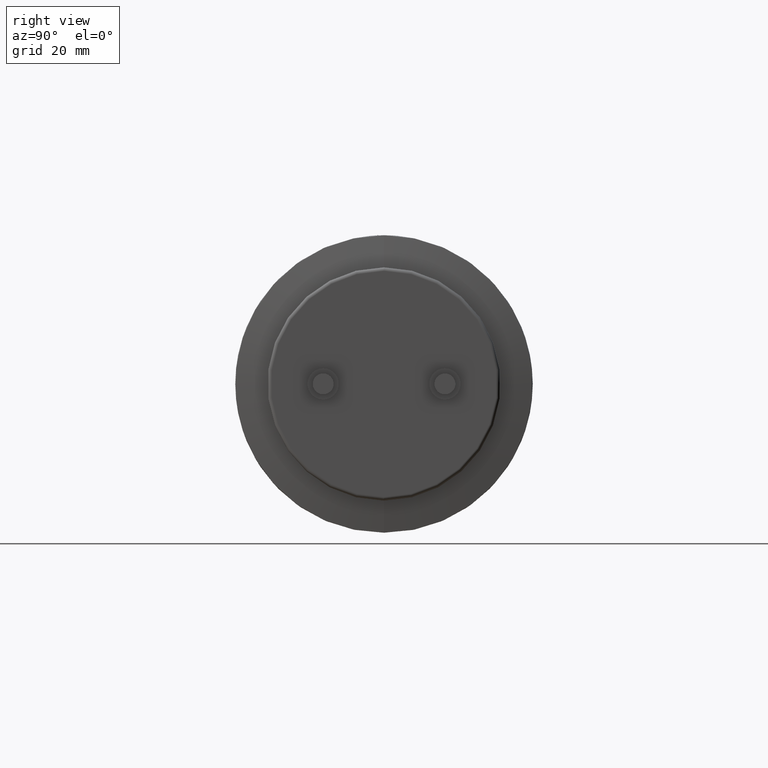
[diagram: clean part render]
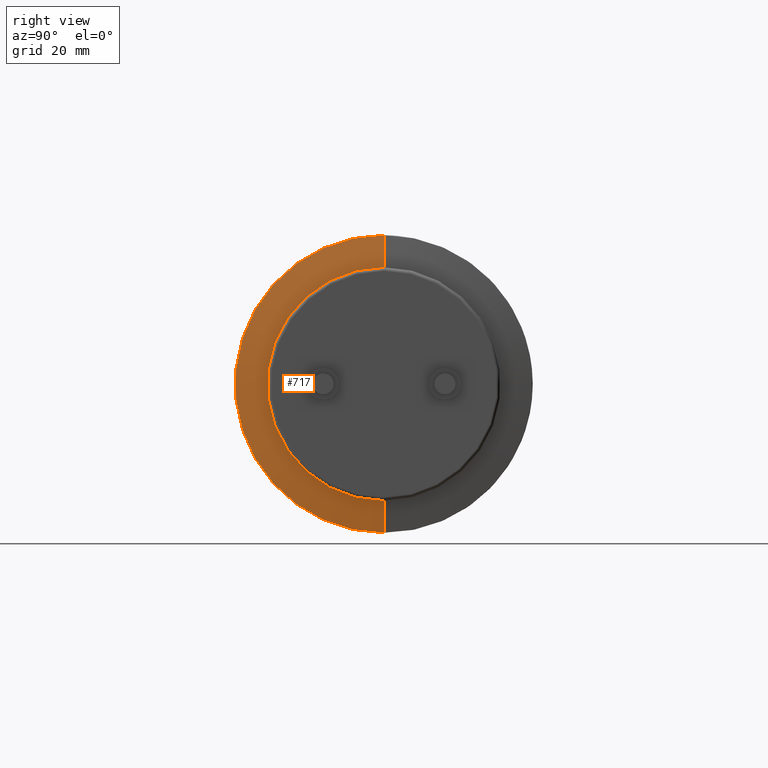
[diagram: same view with one face highlighted and labeled with its STEP entity id]
A machine part, right view. The second image highlights one B-rep face of the part: STEP entity #717.
In plain terms, the highlighted conical surface has half-angle 81.707 deg.
Its self-contained STEP definition (entity closure, byte-faithful):
#113 = EDGE_CURVE ( 'NONE', #2203, #1267, #3289, .T. ) ;
#343 = AXIS2_PLACEMENT_3D ( 'NONE', #2316, #1421, #3254 ) ;
#448 = CARTESIAN_POINT ( 'NONE',  ( 138.6560000000000100, 5.235365066354935500E-015, -42.75000000000000000 ) ) ;
#535 = CARTESIAN_POINT ( 'NONE',  ( 138.6560000000000100, 0.0000000000000000000, 0.0000000000000000000 ) ) ;
#551 = ORIENTED_EDGE ( 'NONE', *, *, #749, .F. ) ;
#696 = CARTESIAN_POINT ( 'NONE',  ( 138.6560000000000100, 5.235365066354935500E-015, -42.75000000000000000 ) ) ;
#702 = DIRECTION ( 'NONE',  ( -0.1442275919508407000, 0.0000000000000000000, 0.9895445425649427300 ) ) ;
#717 = ADVANCED_FACE ( 'NONE', ( #2379 ), #2175, .T. ) ;
#749 = EDGE_CURVE ( 'NONE', #2737, #1070, #3091, .T. ) ;
#879 = EDGE_CURVE ( 'NONE', #1267, #1070, #1955, .T. ) ;
#1070 = VERTEX_POINT ( 'NONE', #696 ) ;
#1077 = CARTESIAN_POINT ( 'NONE',  ( 140.0000000000000000, 0.0000000000000000000, 33.52882499999999800 ) ) ;
#1267 = VERTEX_POINT ( 'NONE', #2650 ) ;
#1421 = DIRECTION ( 'NONE',  ( 1.000000000000000000, -0.0000000000000000000, -0.0000000000000000000 ) ) ;
#1451 = AXIS2_PLACEMENT_3D ( 'NONE', #3342, #2376, #3670 ) ;
#1763 = ORIENTED_EDGE ( 'NONE', *, *, #113, .T. ) ;
#1800 = DIRECTION ( 'NONE',  ( 0.0000000000000000000, 0.0000000000000000000, 1.000000000000000000 ) ) ;
#1955 = CIRCLE ( 'NONE', #1451, 42.75000000000000000 ) ;
#2137 = EDGE_CURVE ( 'NONE', #2203, #2737, #3756, .T. ) ;
#2175 = CONICAL_SURFACE ( 'NONE', #2618, 42.75000000000000000, 1.426063968034981100 ) ;
#2203 = VERTEX_POINT ( 'NONE', #1077 ) ;
#2281 = VECTOR ( 'NONE', #3565, 1000.000000000000000 ) ;
#2284 = VECTOR ( 'NONE', #702, 1000.000000000000000 ) ;
#2316 = CARTESIAN_POINT ( 'NONE',  ( 140.0000000000000000, 0.0000000000000000000, 0.0000000000000000000 ) ) ;
#2376 = DIRECTION ( 'NONE',  ( 1.000000000000000000, -0.0000000000000000000, -0.0000000000000000000 ) ) ;
#2379 = FACE_OUTER_BOUND ( 'NONE', #2926, .T. ) ;
#2538 = CARTESIAN_POINT ( 'NONE',  ( 138.6560000000000100, 0.0000000000000000000, 42.75000000000000000 ) ) ;
#2618 = AXIS2_PLACEMENT_3D ( 'NONE', #535, #3328, #1800 ) ;
#2650 = CARTESIAN_POINT ( 'NONE',  ( 138.6560000000000100, 0.0000000000000000000, 42.75000000000000000 ) ) ;
#2737 = VERTEX_POINT ( 'NONE', #2924 ) ;
#2924 = CARTESIAN_POINT ( 'NONE',  ( 140.0000000000000000, 4.670730943948555600E-015, -33.52882499999999800 ) ) ;
#2926 = EDGE_LOOP ( 'NONE', ( #551, #3627, #1763, #3126 ) ) ;
#3091 = LINE ( 'NONE', #448, #2281 ) ;
#3126 = ORIENTED_EDGE ( 'NONE', *, *, #879, .T. ) ;
#3254 = DIRECTION ( 'NONE',  ( 0.0000000000000000000, 0.0000000000000000000, -1.000000000000000000 ) ) ;
#3289 = LINE ( 'NONE', #2538, #2284 ) ;
#3328 = DIRECTION ( 'NONE',  ( -1.000000000000000000, 0.0000000000000000000, 0.0000000000000000000 ) ) ;
#3342 = CARTESIAN_POINT ( 'NONE',  ( 138.6560000000000100, 0.0000000000000000000, 0.0000000000000000000 ) ) ;
#3565 = DIRECTION ( 'NONE',  ( -0.1442275919508407000, 1.211842556665889000E-016, -0.9895445425649427300 ) ) ;
#3627 = ORIENTED_EDGE ( 'NONE', *, *, #2137, .F. ) ;
#3670 = DIRECTION ( 'NONE',  ( 0.0000000000000000000, 0.0000000000000000000, -1.000000000000000000 ) ) ;
#3756 = CIRCLE ( 'NONE', #343, 33.52882499999999800 ) ;